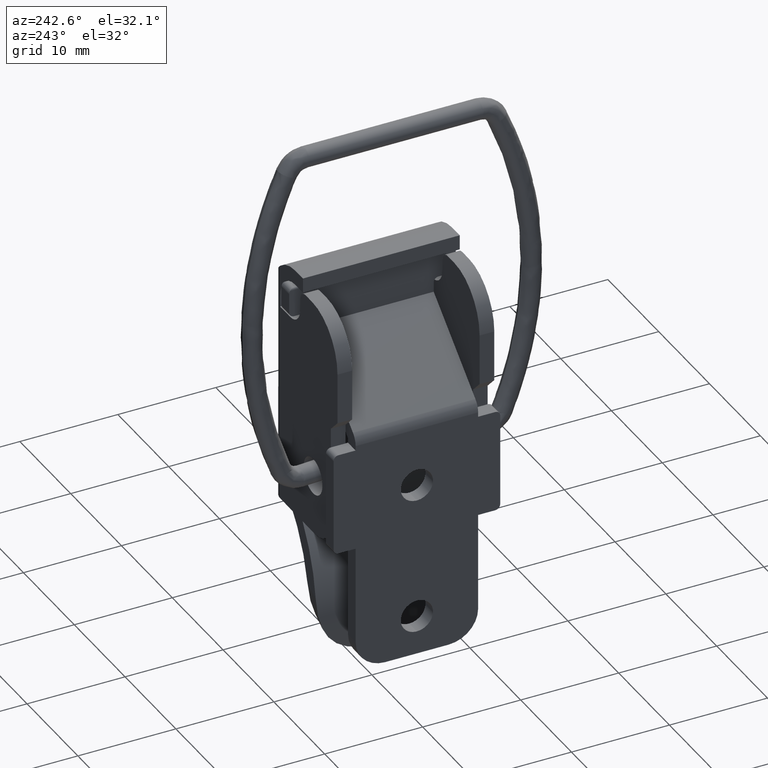
[diagram: clean part render]
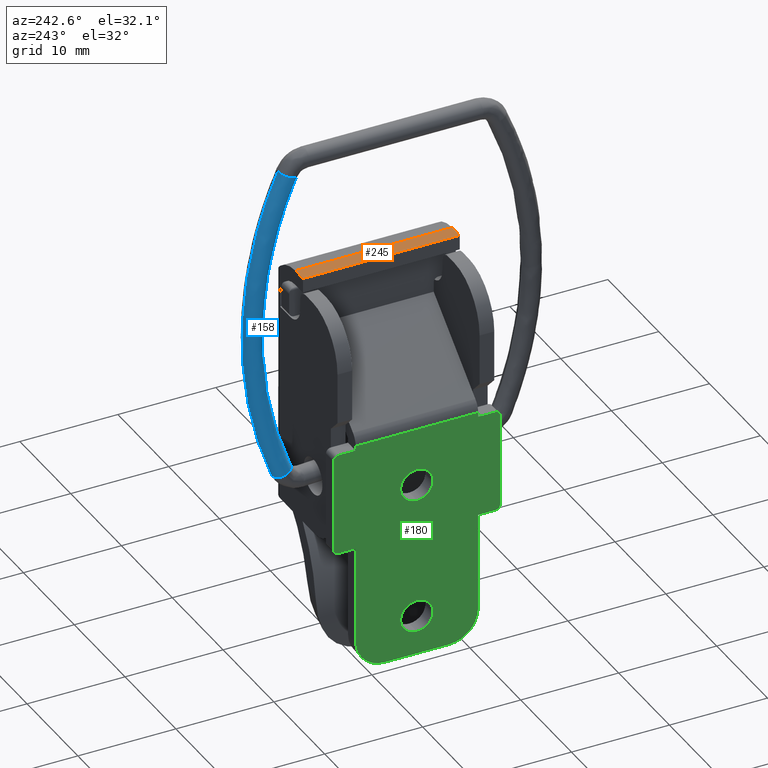
[diagram: same view with three faces highlighted in distinct colors, each labeled with its STEP entity id]
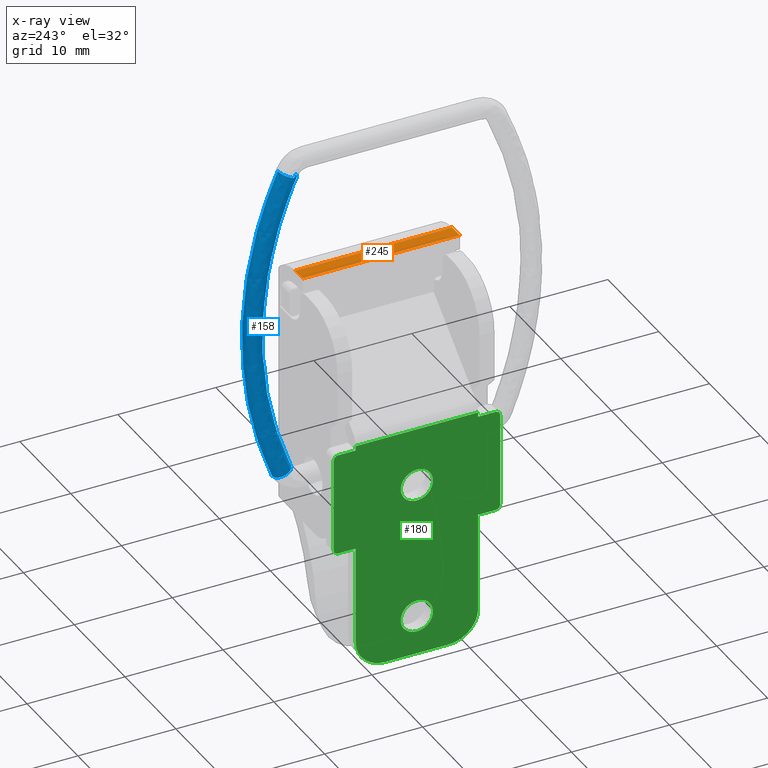
[diagram: x-ray of the same camera — body ghosted, the three highlighted faces saturated]
A machine part, auxiliary view with three faces highlighted in distinct colors.
The next image is the same camera in x-ray (body ghosted, the three faces saturated) — at least one of them is partly hidden behind the body in this view.
Their STEP definitions:

[orange] entity #245 — the highlighted planar face has unit normal (0, 0, 1).
#245=ADVANCED_FACE('',(#1226),#1225,.T.);
#1225=PLANE('',#2028);
#1226=FACE_OUTER_BOUND('',#2029,.T.);
#2025=CARTESIAN_POINT('',(1.85000000000E+00,-1.60000000000E+00,2.00000000000E+01));
#2026=DIRECTION('',(0.00000000000E+00,-0.00000000000E+00,1.00000000000E+00));
#2027=DIRECTION('',(1.00000000000E+00,0.00000000000E+00,-0.00000000000E+00));
#2028=AXIS2_PLACEMENT_3D('',#2025,#2026,#2027);
#2029=EDGE_LOOP('',(#2598,#2599,#2600,#2601));
#2598=ORIENTED_EDGE('',*,*,#2962,.F.);
#2599=ORIENTED_EDGE('',*,*,#2856,.F.);
#2600=ORIENTED_EDGE('',*,*,#2963,.F.);
#2601=ORIENTED_EDGE('',*,*,#2960,.T.);
#2856=EDGE_CURVE('',#4101,#4073,#4108,.T.);
#2960=EDGE_CURVE('',#4802,#4795,#4803,.T.);
#2962=EDGE_CURVE('',#4073,#4795,#4815,.T.);
#2963=EDGE_CURVE('',#4802,#4101,#4821,.T.);
#4073=VERTEX_POINT('',#5614);
#4101=VERTEX_POINT('',#5649);
#4108=LINE('',#5654,#5655);
#4795=VERTEX_POINT('',#6151);
#4802=VERTEX_POINT('',#6155);
#4803=LINE('',#6156,#6157);
#4815=LINE('',#6162,#6163);
#4821=LINE('',#6165,#6166);
#5614=CARTESIAN_POINT('',(3.50000000000E+00,0.00000000000E+00,2.00000000000E+01));
#5649=CARTESIAN_POINT('',(3.50000000000E+00,1.60000000000E+01,2.00000000000E+01));
#5654=CARTESIAN_POINT('',(3.50000000000E+00,1.60000000000E+01,2.00000000000E+01));
#5655=VECTOR('',#5656,1.60000000000E+01);
#5656=DIRECTION('',(0.00000000000E+00,-1.00000000000E+00,0.00000000000E+00));
#6151=CARTESIAN_POINT('',(2.00000000000E+00,0.00000000000E+00,2.00000000000E+01));
#6155=CARTESIAN_POINT('',(2.00000000000E+00,1.60000000000E+01,2.00000000000E+01));
#6156=CARTESIAN_POINT('',(2.00000000000E+00,1.60000000000E+01,2.00000000000E+01));
#6157=VECTOR('',#6158,1.60000000000E+01);
#6158=DIRECTION('',(0.00000000000E+00,-1.00000000000E+00,0.00000000000E+00));
#6162=CARTESIAN_POINT('',(3.50000000000E+00,0.00000000000E+00,2.00000000000E+01));
#6163=VECTOR('',#6164,1.50000000000E+00);
#6164=DIRECTION('',(-1.00000000000E+00,0.00000000000E+00,0.00000000000E+00));
#6165=CARTESIAN_POINT('',(2.00000000000E+00,1.60000000000E+01,2.00000000000E+01));
#6166=VECTOR('',#6167,1.50000000000E+00);
#6167=DIRECTION('',(1.00000000000E+00,0.00000000000E+00,0.00000000000E+00));

[blue] entity #158 — the highlighted face is a freeform B-spline surface patch.
#158=ADVANCED_FACE('',(#350),#349,.T.);
#349=( BOUNDED_SURFACE() B_SPLINE_SURFACE( 2,2,((#1465,#1466,#1467),(#1468,#1469,#1470),(#1471,#1472,#1473),(#1474,#1475,#1476),(#1477,#1478,#1479)), .UNSPECIFIED.,.F.,.F.,.F.) B_SPLINE_SURFACE_WITH_KNOTS((3,2,3),(3,3),(-4.44089209850E-16,1.57079632679E+00,3.14159265359E+00),(0.00000000000E+00,9.00395545556E-01), .UNSPECIFIED. ) GEOMETRIC_REPRESENTATION_ITEM() RATIONAL_B_SPLINE_SURFACE(((1.00000000000E+00,9.00361060401E-01,1.00000000000E+00),(7.07106781187E-01,6.36651411326E-01,7.07106781187E-01),(1.00000000000E+00,9.00361060401E-01,1.00000000000E+00),(7.07106781187E-01,6.36651411326E-01,7.07106781187E-01),(1.00000000000E+00,9.00361060401E-01,1.00000000000E+00))) REPRESENTATION_ITEM('') SURFACE() );
#350=FACE_OUTER_BOUND('',#1480,.T.);
#1465=CARTESIAN_POINT('',(1.14215246497E+01,1.00000000000E+00,-1.72844518427E+01));
#1466=CARTESIAN_POINT('',(1.97750831212E+01,1.00000000000E+00,6.47341486970E-01));
#1467=CARTESIAN_POINT('',(1.09142855178E+01,1.00000000000E+00,1.83339866461E+01));
#1468=CARTESIAN_POINT('',(1.14215246497E+01,2.00000000000E+00,-1.72844518427E+01));
#1469=CARTESIAN_POINT('',(1.97750831212E+01,2.00000000000E+00,6.47341486970E-01));
#1470=CARTESIAN_POINT('',(1.09142855178E+01,2.00000000000E+00,1.83339866461E+01));
#1471=CARTESIAN_POINT('',(1.05150586591E+01,2.00000000000E+00,-1.68621730156E+01));
#1472=CARTESIAN_POINT('',(1.86645301913E+01,2.00000000000E+00,6.31526197810E-01));
#1473=CARTESIAN_POINT('',(1.00202119563E+01,2.00000000000E+00,1.78860664895E+01));
#1474=CARTESIAN_POINT('',(9.60859266842E+00,2.00000000000E+00,-1.64398941885E+01));
#1475=CARTESIAN_POINT('',(1.75539772614E+01,2.00000000000E+00,6.15710908650E-01));
#1476=CARTESIAN_POINT('',(9.12613839490E+00,2.00000000000E+00,1.74381463328E+01));
#1477=CARTESIAN_POINT('',(9.60859266842E+00,1.00000000000E+00,-1.64398941885E+01));
#1478=CARTESIAN_POINT('',(1.75539772614E+01,1.00000000000E+00,6.15710908650E-01));
#1479=CARTESIAN_POINT('',(9.12613839490E+00,1.00000000000E+00,1.74381463328E+01));
#1480=EDGE_LOOP('',(#2133,#2134,#2135,#2136));
#2133=ORIENTED_EDGE('',*,*,#2700,.T.);
#2134=ORIENTED_EDGE('',*,*,#2708,.T.);
#2135=ORIENTED_EDGE('',*,*,#2710,.T.);
#2136=ORIENTED_EDGE('',*,*,#2709,.F.);
#2700=EDGE_CURVE('',#3051,#3050,#3070,.T.);
#2708=EDGE_CURVE('',#3050,#3117,#3124,.T.);
#2709=EDGE_CURVE('',#3051,#3116,#3130,.T.);
#2710=EDGE_CURVE('',#3117,#3116,#3136,.T.);
#3050=VERTEX_POINT('',#4987);
#3051=VERTEX_POINT('',#4988);
#3070=CIRCLE('',#5006,1.00000000000E+00);
#3116=VERTEX_POINT('',#5031);
#3117=VERTEX_POINT('',#5032);
#3124=(BOUNDED_CURVE() B_SPLINE_CURVE(2,(#5037,#5038,#5039),.UNSPECIFIED.,.F.,.F.) B_SPLINE_CURVE_WITH_KNOTS((3,3),(4.96310095436E-02,8.60318199685E-01),.UNSPECIFIED.) CURVE() GEOMETRIC_REPRESENTATION_ITEM() RATIONAL_B_SPLINE_CURVE((9.89621014520E-01,9.09799375919E-01,9.91524789767E-01)) REPRESENTATION_ITEM('') );
#3130=(BOUNDED_CURVE() B_SPLINE_CURVE(2,(#5040,#5041,#5042),.UNSPECIFIED.,.F.,.F.) B_SPLINE_CURVE_WITH_KNOTS((3,3),(4.96310091621E-02,8.60318184004E-01),.UNSPECIFIED.) CURVE() GEOMETRIC_REPRESENTATION_ITEM() RATIONAL_B_SPLINE_CURVE((9.89621014595E-01,9.09799377424E-01,9.91524786606E-01)) REPRESENTATION_ITEM('') );
#3136=CIRCLE('',#5046,1.00000000000E+00);
#4987=CARTESIAN_POINT('',(1.03601002354E+01,1.00000000000E+00,-1.47195110664E+01));
#4988=CARTESIAN_POINT('',(1.22116390022E+01,1.00000000000E+00,-1.54756884235E+01));
#5003=CARTESIAN_POINT('',(1.12858696188E+01,1.00000000000E+00,-1.50975997449E+01));
#5004=DIRECTION('',(3.78088678521E-01,0.00000000000E+00,9.25769383364E-01));
#5005=DIRECTION('',(9.25769383364E-01,-1.22460635382E-16,-3.78088678521E-01));
#5006=AXIS2_PLACEMENT_3D('',#5003,#5004,#5005);
#5031=CARTESIAN_POINT('',(1.15996948339E+01,1.00000000000E+00,1.68967236752E+01));
#5032=CARTESIAN_POINT('',(9.77805705193E+00,1.00000000000E+00,1.60711113017E+01));
#5037=CARTESIAN_POINT('',(1.03601002409E+01,1.00000000000E+00,-1.47195110530E+01));
#5038=CARTESIAN_POINT('',(1.66988022024E+01,1.00000000000E+00,8.01123512029E-01));
#5039=CARTESIAN_POINT('',(9.77805706027E+00,1.00000000000E+00,1.60711112833E+01));
#5040=CARTESIAN_POINT('',(1.22116390022E+01,1.00000000000E+00,-1.54756884235E+01));
#5041=CARTESIAN_POINT('',(1.88759754872E+01,1.00000000000E+00,8.42278838614E-01));
#5042=CARTESIAN_POINT('',(1.15996951009E+01,1.00000000000E+00,1.68967230860E+01));
#5043=CARTESIAN_POINT('',(1.06888759429E+01,1.00000000000E+00,1.64839174885E+01));
#5044=DIRECTION('',(4.12806186768E-01,0.00000000000E+00,-9.10818890980E-01));
#5045=DIRECTION('',(-9.10818890980E-01,-1.22460635382E-16,-4.12806186768E-01));
#5046=AXIS2_PLACEMENT_3D('',#5043,#5044,#5045);

[green] entity #180 — the highlighted planar face has unit normal (1, 0, 0).
#180=ADVANCED_FACE('',(#572,#573,#574),#571,.F.);
#571=PLANE('',#1699);
#572=FACE_OUTER_BOUND('',#1700,.T.);
#573=FACE_BOUND('',#1701,.T.);
#574=FACE_BOUND('',#1702,.T.);
#1696=CARTESIAN_POINT('',(0.00000000000E+00,-1.70000000000E+00,8.35425841400E+00));
#1697=DIRECTION('',(1.00000000000E+00,0.00000000000E+00,0.00000000000E+00));
#1698=DIRECTION('',(0.00000000000E+00,0.00000000000E+00,-1.00000000000E+00));
#1699=AXIS2_PLACEMENT_3D('',#1696,#1697,#1698);
#1700=EDGE_LOOP('',(#2257,#2258,#2259,#2260,#2261,#2262,#2263,#2264,#2265,#2266,#2267,#2268,#2269,#2270,#2271,#2272,#2273,#2274));
#1701=EDGE_LOOP('',(#2275,#2276));
#1702=EDGE_LOOP('',(#2277,#2278));
#2257=ORIENTED_EDGE('',*,*,#2794,.F.);
#2258=ORIENTED_EDGE('',*,*,#2795,.T.);
#2259=ORIENTED_EDGE('',*,*,#2749,.F.);
#2260=ORIENTED_EDGE('',*,*,#2796,.T.);
#2261=ORIENTED_EDGE('',*,*,#2797,.T.);
#2262=ORIENTED_EDGE('',*,*,#2798,.T.);
#2263=ORIENTED_EDGE('',*,*,#2799,.T.);
#2264=ORIENTED_EDGE('',*,*,#2791,.T.);
#2265=ORIENTED_EDGE('',*,*,#2800,.T.);
#2266=ORIENTED_EDGE('',*,*,#2801,.F.);
#2267=ORIENTED_EDGE('',*,*,#2802,.F.);
#2268=ORIENTED_EDGE('',*,*,#2803,.T.);
#2269=ORIENTED_EDGE('',*,*,#2747,.T.);
#2270=ORIENTED_EDGE('',*,*,#2804,.T.);
#2271=ORIENTED_EDGE('',*,*,#2805,.T.);
#2272=ORIENTED_EDGE('',*,*,#2806,.T.);
#2273=ORIENTED_EDGE('',*,*,#2807,.F.);
#2274=ORIENTED_EDGE('',*,*,#2808,.F.);
#2275=ORIENTED_EDGE('',*,*,#2809,.T.);
#2276=ORIENTED_EDGE('',*,*,#2810,.T.);
#2277=ORIENTED_EDGE('',*,*,#2811,.T.);
#2278=ORIENTED_EDGE('',*,*,#2812,.T.);
#2747=EDGE_CURVE('',#3383,#3376,#3384,.T.);
#2749=EDGE_CURVE('',#3396,#3397,#3398,.T.);
#2791=EDGE_CURVE('',#3683,#3684,#3685,.T.);
#2794=EDGE_CURVE('',#3703,#3704,#3705,.T.);
#2795=EDGE_CURVE('',#3703,#3397,#3711,.T.);
#2796=EDGE_CURVE('',#3396,#3717,#3718,.T.);
#2797=EDGE_CURVE('',#3717,#3724,#3725,.T.);
#2798=EDGE_CURVE('',#3724,#3731,#3732,.T.);
#2799=EDGE_CURVE('',#3731,#3683,#3738,.T.);
#2800=EDGE_CURVE('',#3684,#3744,#3745,.T.);
#2801=EDGE_CURVE('',#3751,#3744,#3752,.T.);
#2802=EDGE_CURVE('',#3758,#3751,#3759,.T.);
#2803=EDGE_CURVE('',#3758,#3383,#3765,.T.);
#2804=EDGE_CURVE('',#3376,#3771,#3772,.T.);
#2805=EDGE_CURVE('',#3771,#3778,#3779,.T.);
#2806=EDGE_CURVE('',#3778,#3785,#3786,.T.);
#2807=EDGE_CURVE('',#3792,#3785,#3793,.T.);
#2808=EDGE_CURVE('',#3704,#3792,#3799,.T.);
#2809=EDGE_CURVE('',#3805,#3806,#3807,.T.);
#2810=EDGE_CURVE('',#3806,#3805,#3813,.T.);
#2811=EDGE_CURVE('',#3819,#3820,#3821,.T.);
#2812=EDGE_CURVE('',#3820,#3819,#3827,.T.);
#3376=VERTEX_POINT('',#5197);
#3383=VERTEX_POINT('',#5201);
#3384=LINE('',#5202,#5203);
#3396=VERTEX_POINT('',#5208);
#3397=VERTEX_POINT('',#5209);
#3398=LINE('',#5210,#5211);
#3683=VERTEX_POINT('',#5388);
#3684=VERTEX_POINT('',#5389);
#3685=LINE('',#5390,#5391);
#3703=VERTEX_POINT('',#5399);
#3704=VERTEX_POINT('',#5400);
#3705=LINE('',#5401,#5402);
#3711=CIRCLE('',#5407,5.00000000000E-01);
#3717=VERTEX_POINT('',#5408);
#3718=CIRCLE('',#5412,5.00000000000E-01);
#3724=VERTEX_POINT('',#5413);
#3725=LINE('',#5414,#5415);
#3731=VERTEX_POINT('',#5417);
#3732=LINE('',#5418,#5419);
#3738=CIRCLE('',#5424,3.00000000000E+00);
#3744=VERTEX_POINT('',#5425);
#3745=CIRCLE('',#5429,3.00000000000E+00);
#3751=VERTEX_POINT('',#5430);
#3752=LINE('',#5431,#5432);
#3758=VERTEX_POINT('',#5434);
#3759=LINE('',#5435,#5436);
#3765=CIRCLE('',#5441,5.00000000000E-01);
#3771=VERTEX_POINT('',#5442);
#3772=CIRCLE('',#5446,5.00000000000E-01);
#3778=VERTEX_POINT('',#5447);
#3779=LINE('',#5448,#5449);
#3785=VERTEX_POINT('',#5451);
#3786=LINE('',#5452,#5453);
#3792=VERTEX_POINT('',#5455);
#3793=LINE('',#5456,#5457);
#3799=LINE('',#5459,#5460);
#3805=VERTEX_POINT('',#5462);
#3806=VERTEX_POINT('',#5463);
#3807=CIRCLE('',#5467,1.65000000000E+00);
#3813=CIRCLE('',#5471,1.65000000000E+00);
#3819=VERTEX_POINT('',#5472);
#3820=VERTEX_POINT('',#5473);
#3821=CIRCLE('',#5477,1.65000000000E+00);
#3827=CIRCLE('',#5481,1.65000000000E+00);
#5197=CARTESIAN_POINT('',(0.00000000000E+00,0.00000000000E+00,5.00000000000E+00));
#5201=CARTESIAN_POINT('',(0.00000000000E+00,0.00000000000E+00,-4.50000000000E+00));
#5202=CARTESIAN_POINT('',(0.00000000000E+00,0.00000000000E+00,-4.50000000000E+00));
#5203=VECTOR('',#5204,9.50000000000E+00);
#5204=DIRECTION('',(0.00000000000E+00,0.00000000000E+00,1.00000000000E+00));
#5208=CARTESIAN_POINT('',(0.00000000000E+00,1.70000000000E+01,-4.50000000000E+00));
#5209=CARTESIAN_POINT('',(0.00000000000E+00,1.70000000000E+01,5.00000000000E+00));
#5210=CARTESIAN_POINT('',(0.00000000000E+00,1.70000000000E+01,-4.50000000000E+00));
#5211=VECTOR('',#5212,9.50000000000E+00);
#5212=DIRECTION('',(0.00000000000E+00,0.00000000000E+00,1.00000000000E+00));
#5388=CARTESIAN_POINT('',(0.00000000000E+00,1.17500000000E+01,-1.80000000000E+01));
#5389=CARTESIAN_POINT('',(0.00000000000E+00,5.25000000000E+00,-1.80000000000E+01));
#5390=CARTESIAN_POINT('',(0.00000000000E+00,1.17500000000E+01,-1.80000000000E+01));
#5391=VECTOR('',#5392,6.50000000000E+00);
#5392=DIRECTION('',(0.00000000000E+00,-1.00000000000E+00,0.00000000000E+00));
#5399=CARTESIAN_POINT('',(0.00000000000E+00,1.65000000000E+01,5.50000000000E+00));
#5400=CARTESIAN_POINT('',(0.00000000000E+00,1.47500000000E+01,5.50000000000E+00));
#5401=CARTESIAN_POINT('',(0.00000000000E+00,1.65000000000E+01,5.50000000000E+00));
#5402=VECTOR('',#5403,1.75000000000E+00);
#5403=DIRECTION('',(0.00000000000E+00,-1.00000000000E+00,0.00000000000E+00));
#5404=CARTESIAN_POINT('',(0.00000000000E+00,1.65000000000E+01,5.00000000000E+00));
#5405=DIRECTION('',(-1.00000000000E+00,0.00000000000E+00,-0.00000000000E+00));
#5406=DIRECTION('',(0.00000000000E+00,1.00000000000E+00,-1.83690953073E-16));
#5407=AXIS2_PLACEMENT_3D('',#5404,#5405,#5406);
#5408=CARTESIAN_POINT('',(0.00000000000E+00,1.65000000000E+01,-5.00000000000E+00));
#5409=CARTESIAN_POINT('',(0.00000000000E+00,1.65000000000E+01,-4.50000000000E+00));
#5410=DIRECTION('',(-1.00000000000E+00,-0.00000000000E+00,-0.00000000000E+00));
#5411=DIRECTION('',(-0.00000000000E+00,-0.00000000000E+00,1.00000000000E+00));
#5412=AXIS2_PLACEMENT_3D('',#5409,#5410,#5411);
#5413=CARTESIAN_POINT('',(0.00000000000E+00,1.47500000000E+01,-5.00000000000E+00));
#5414=CARTESIAN_POINT('',(0.00000000000E+00,1.65000000000E+01,-5.00000000000E+00));
#5415=VECTOR('',#5416,1.75000000000E+00);
#5416=DIRECTION('',(0.00000000000E+00,-1.00000000000E+00,0.00000000000E+00));
#5417=CARTESIAN_POINT('',(0.00000000000E+00,1.47500000000E+01,-1.50000000000E+01));
#5418=CARTESIAN_POINT('',(0.00000000000E+00,1.47500000000E+01,-5.00000000000E+00));
#5419=VECTOR('',#5420,1.00000000000E+01);
#5420=DIRECTION('',(0.00000000000E+00,0.00000000000E+00,-1.00000000000E+00));
#5421=CARTESIAN_POINT('',(0.00000000000E+00,1.17500000000E+01,-1.50000000000E+01));
#5422=DIRECTION('',(-1.00000000000E+00,-0.00000000000E+00,-0.00000000000E+00));
#5423=DIRECTION('',(-0.00000000000E+00,-0.00000000000E+00,1.00000000000E+00));
#5424=AXIS2_PLACEMENT_3D('',#5421,#5422,#5423);
#5425=CARTESIAN_POINT('',(0.00000000000E+00,2.25000000000E+00,-1.50000000000E+01));
#5426=CARTESIAN_POINT('',(0.00000000000E+00,5.25000000000E+00,-1.50000000000E+01));
#5427=DIRECTION('',(-1.00000000000E+00,-0.00000000000E+00,-0.00000000000E+00));
#5428=DIRECTION('',(-0.00000000000E+00,-0.00000000000E+00,1.00000000000E+00));
#5429=AXIS2_PLACEMENT_3D('',#5426,#5427,#5428);
#5430=CARTESIAN_POINT('',(0.00000000000E+00,2.25000000000E+00,-5.00000000000E+00));
#5431=CARTESIAN_POINT('',(0.00000000000E+00,2.25000000000E+00,-5.00000000000E+00));
#5432=VECTOR('',#5433,1.00000000000E+01);
#5433=DIRECTION('',(0.00000000000E+00,0.00000000000E+00,-1.00000000000E+00));
#5434=CARTESIAN_POINT('',(0.00000000000E+00,5.00000000000E-01,-5.00000000000E+00));
#5435=CARTESIAN_POINT('',(0.00000000000E+00,5.00000000000E-01,-5.00000000000E+00));
#5436=VECTOR('',#5437,1.75000000000E+00);
#5437=DIRECTION('',(0.00000000000E+00,1.00000000000E+00,0.00000000000E+00));
#5438=CARTESIAN_POINT('',(0.00000000000E+00,5.00000000000E-01,-4.50000000000E+00));
#5439=DIRECTION('',(-1.00000000000E+00,-0.00000000000E+00,-0.00000000000E+00));
#5440=DIRECTION('',(-0.00000000000E+00,-0.00000000000E+00,1.00000000000E+00));
#5441=AXIS2_PLACEMENT_3D('',#5438,#5439,#5440);
#5442=CARTESIAN_POINT('',(0.00000000000E+00,5.00000000000E-01,5.50000000000E+00));
#5443=CARTESIAN_POINT('',(0.00000000000E+00,5.00000000000E-01,5.00000000000E+00));
#5444=DIRECTION('',(-1.00000000000E+00,-0.00000000000E+00,-0.00000000000E+00));
#5445=DIRECTION('',(-0.00000000000E+00,-0.00000000000E+00,1.00000000000E+00));
#5446=AXIS2_PLACEMENT_3D('',#5443,#5444,#5445);
#5447=CARTESIAN_POINT('',(0.00000000000E+00,2.25000000000E+00,5.50000000000E+00));
#5448=CARTESIAN_POINT('',(0.00000000000E+00,5.00000000000E-01,5.50000000000E+00));
#5449=VECTOR('',#5450,1.75000000000E+00);
#5450=DIRECTION('',(0.00000000000E+00,1.00000000000E+00,0.00000000000E+00));
#5451=CARTESIAN_POINT('',(0.00000000000E+00,2.25000000000E+00,5.95841674000E+00));
#5452=CARTESIAN_POINT('',(0.00000000000E+00,2.25000000000E+00,5.50000000000E+00));
#5453=VECTOR('',#5454,4.58416740000E-01);
#5454=DIRECTION('',(0.00000000000E+00,0.00000000000E+00,1.00000000000E+00));
#5455=CARTESIAN_POINT('',(0.00000000000E+00,1.47500000000E+01,5.95841674000E+00));
#5456=CARTESIAN_POINT('',(0.00000000000E+00,1.47500000000E+01,5.95841674000E+00));
#5457=VECTOR('',#5458,1.25000000000E+01);
#5458=DIRECTION('',(0.00000000000E+00,-1.00000000000E+00,0.00000000000E+00));
#5459=CARTESIAN_POINT('',(0.00000000000E+00,1.47500000000E+01,5.50000000000E+00));
#5460=VECTOR('',#5461,4.58416740000E-01);
#5461=DIRECTION('',(0.00000000000E+00,0.00000000000E+00,1.00000000000E+00));
#5462=CARTESIAN_POINT('',(0.00000000000E+00,8.50000000000E+00,-1.56500000000E+01));
#5463=CARTESIAN_POINT('',(0.00000000000E+00,8.50000000000E+00,-1.23500000000E+01));
#5464=CARTESIAN_POINT('',(0.00000000000E+00,8.50000000000E+00,-1.40000000000E+01));
#5465=DIRECTION('',(1.00000000000E+00,0.00000000000E+00,0.00000000000E+00));
#5466=DIRECTION('',(0.00000000000E+00,-1.22460635382E-16,-1.00000000000E+00));
#5467=AXIS2_PLACEMENT_3D('',#5464,#5465,#5466);
#5468=CARTESIAN_POINT('',(0.00000000000E+00,8.50000000000E+00,-1.40000000000E+01));
#5469=DIRECTION('',(1.00000000000E+00,0.00000000000E+00,0.00000000000E+00));
#5470=DIRECTION('',(0.00000000000E+00,-1.22460635382E-16,-1.00000000000E+00));
#5471=AXIS2_PLACEMENT_3D('',#5468,#5469,#5470);
#5472=CARTESIAN_POINT('',(0.00000000000E+00,8.50000000000E+00,-1.65000000000E+00));
#5473=CARTESIAN_POINT('',(0.00000000000E+00,8.50000000000E+00,1.65000000000E+00));
#5474=CARTESIAN_POINT('',(0.00000000000E+00,8.50000000000E+00,1.98951966013E-13));
#5475=DIRECTION('',(1.00000000000E+00,0.00000000000E+00,0.00000000000E+00));
#5476=DIRECTION('',(0.00000000000E+00,-1.22460635382E-16,-1.00000000000E+00));
#5477=AXIS2_PLACEMENT_3D('',#5474,#5475,#5476);
#5478=CARTESIAN_POINT('',(0.00000000000E+00,8.50000000000E+00,1.98951966013E-13));
#5479=DIRECTION('',(1.00000000000E+00,0.00000000000E+00,0.00000000000E+00));
#5480=DIRECTION('',(0.00000000000E+00,-1.22460635382E-16,-1.00000000000E+00));
#5481=AXIS2_PLACEMENT_3D('',#5478,#5479,#5480);